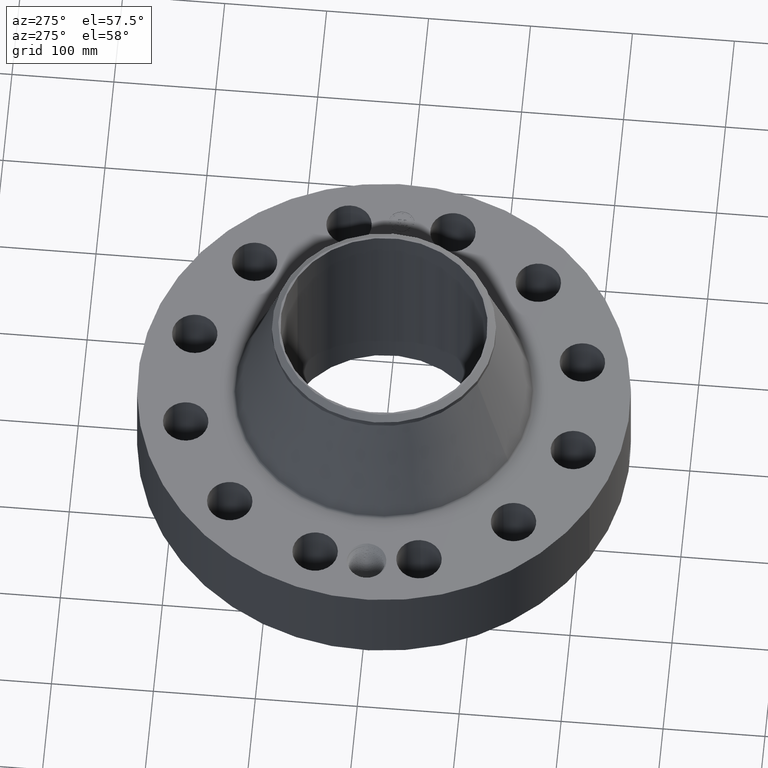
[diagram: clean part render]
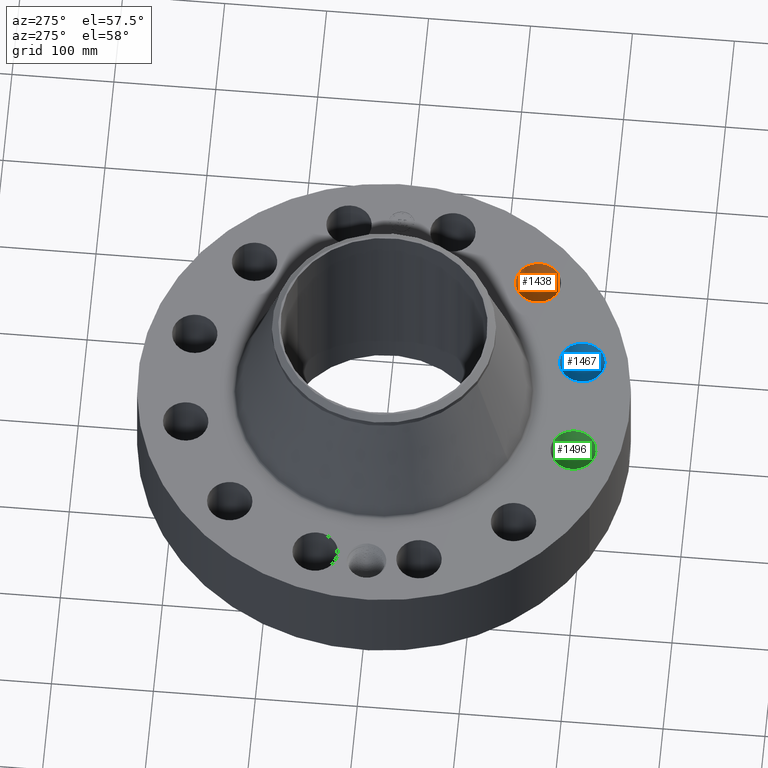
[diagram: same view with three faces highlighted in distinct colors, each labeled with its STEP entity id]
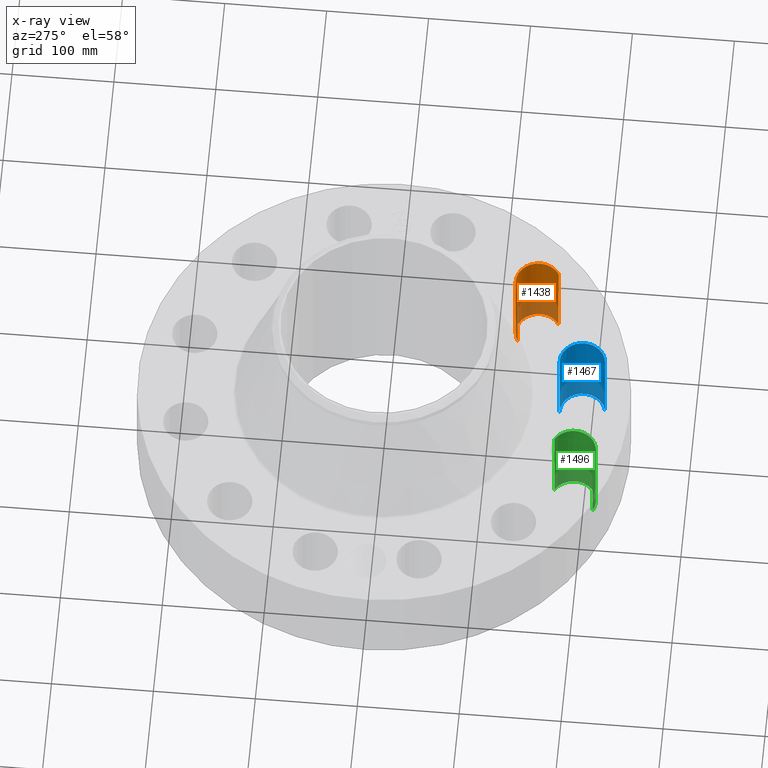
[diagram: x-ray of the same camera — body ghosted, the three highlighted faces saturated]
A machine part, auxiliary view with three faces highlighted in distinct colors.
The next image is the same camera in x-ray (body ghosted, the three faces saturated) — at least one of them is partly hidden behind the body in this view.
Their STEP definitions:

[orange] entity #1438 — the highlighted cylindrical surface (edge-blend (fillet) strip) has radius 22.225 mm, axis along (0, -0, -1).
#280=AXIS2_PLACEMENT_3D('Circle Axis2P3D',#278,#279,$) ;
#690=AXIS2_PLACEMENT_3D('Circle Axis2P3D',#688,#689,$) ;
#1420=AXIS2_PLACEMENT_3D('Cylinder Axis2P3D',#1417,#1418,#1419) ;
#278=CARTESIAN_POINT('Axis2P3D Location',(5.48007755422,-5.48007755422,0.250000000001)) ;
#282=CARTESIAN_POINT('Vertex',(5.0248185339,-4.73283982469,0.250000000001)) ;
#284=CARTESIAN_POINT('Vertex',(5.93533657453,-6.22731528375,0.250000000001)) ;
#683=CARTESIAN_POINT('Vertex',(5.93533657453,-6.22731528375,3.87000000002)) ;
#685=CARTESIAN_POINT('Vertex',(5.0248185339,-4.73283982469,3.87000000002)) ;
#688=CARTESIAN_POINT('Axis2P3D Location',(5.48007755422,-5.48007755422,3.87000000002)) ;
#1417=CARTESIAN_POINT('Axis2P3D Location',(5.48007755422,-5.48007755422,3.86606299214)) ;
#1422=CARTESIAN_POINT('Line Origine',(5.0248185339,-4.73283982469,2.06000000001)) ;
#1427=CARTESIAN_POINT('Line Origine',(5.93533657453,-6.22731528375,2.06000000001)) ;
#279=DIRECTION('Axis2P3D Direction',(0.,0.,-0.0393700787402)) ;
#689=DIRECTION('Axis2P3D Direction',(0.,0.,-0.0393700787402)) ;
#1418=DIRECTION('Axis2P3D Direction',(0.,-0.,-0.0393700787402)) ;
#1419=DIRECTION('Axis2P3D XDirection',(0.0204840954021,-0.0336214951417,0.)) ;
#1423=DIRECTION('Vector Direction',(0.,0.,-0.0393700787402)) ;
#1428=DIRECTION('Vector Direction',(0.,0.,-0.0393700787402)) ;
#1424=VECTOR('Line Direction',#1423,0.0393700787402) ;
#1429=VECTOR('Line Direction',#1428,0.0393700787402) ;
#1433=ORIENTED_EDGE('',*,*,#1426,.F.) ;
#1434=ORIENTED_EDGE('',*,*,#286,.T.) ;
#1435=ORIENTED_EDGE('',*,*,#1431,.T.) ;
#1436=ORIENTED_EDGE('',*,*,#692,.F.) ;
#1438=ADVANCED_FACE('PartBody',(#1437),#1421,.F.) ;
#281=CIRCLE('generated circle',#280,0.875000000003) ;
#691=CIRCLE('generated circle',#690,0.875000000003) ;
#1421=CYLINDRICAL_SURFACE('generated cylinder',#1420,0.875000000003) ;
#286=EDGE_CURVE('',#283,#285,#281,.T.) ;
#692=EDGE_CURVE('',#686,#684,#691,.T.) ;
#1426=EDGE_CURVE('',#283,#686,#1425,.F.) ;
#1431=EDGE_CURVE('',#285,#684,#1430,.F.) ;
#1432=EDGE_LOOP('',(#1433,#1434,#1435,#1436)) ;
#1437=FACE_OUTER_BOUND('',#1432,.T.) ;
#1425=LINE('Line',#1422,#1424) ;
#1430=LINE('Line',#1427,#1429) ;
#283=VERTEX_POINT('',#282) ;
#285=VERTEX_POINT('',#284) ;
#684=VERTEX_POINT('',#683) ;
#686=VERTEX_POINT('',#685) ;

[blue] entity #1467 — the highlighted cylindrical surface (edge-blend (fillet) strip) has radius 22.225 mm, axis along (0, -0, -1).
#298=AXIS2_PLACEMENT_3D('Circle Axis2P3D',#296,#297,$) ;
#708=AXIS2_PLACEMENT_3D('Circle Axis2P3D',#706,#707,$) ;
#1449=AXIS2_PLACEMENT_3D('Cylinder Axis2P3D',#1446,#1447,#1448) ;
#296=CARTESIAN_POINT('Axis2P3D Location',(2.00584759955,-7.48592515377,0.250000000001)) ;
#300=CARTESIAN_POINT('Vertex',(1.98520058742,-6.61116878718,0.250000000001)) ;
#302=CARTESIAN_POINT('Vertex',(2.02649461168,-8.36068152036,0.250000000001)) ;
#701=CARTESIAN_POINT('Vertex',(2.02649461168,-8.36068152036,3.87000000002)) ;
#703=CARTESIAN_POINT('Vertex',(1.98520058742,-6.61116878718,3.87000000002)) ;
#706=CARTESIAN_POINT('Axis2P3D Location',(2.00584759955,-7.48592515377,3.87000000002)) ;
#1446=CARTESIAN_POINT('Axis2P3D Location',(2.00584759955,-7.48592515377,3.86606299214)) ;
#1451=CARTESIAN_POINT('Line Origine',(1.98520058742,-6.61116878718,2.06000000001)) ;
#1456=CARTESIAN_POINT('Line Origine',(2.02649461168,-8.36068152036,2.06000000001)) ;
#297=DIRECTION('Axis2P3D Direction',(0.,0.,-0.0393700787402)) ;
#707=DIRECTION('Axis2P3D Direction',(0.,0.,-0.0393700787402)) ;
#1447=DIRECTION('Axis2P3D Direction',(0.,-0.,-0.0393700787402)) ;
#1448=DIRECTION('Axis2P3D XDirection',(0.000928999420902,-0.039359116607,0.)) ;
#1452=DIRECTION('Vector Direction',(0.,0.,-0.0393700787402)) ;
#1457=DIRECTION('Vector Direction',(0.,0.,-0.0393700787402)) ;
#1453=VECTOR('Line Direction',#1452,0.0393700787402) ;
#1458=VECTOR('Line Direction',#1457,0.0393700787402) ;
#1462=ORIENTED_EDGE('',*,*,#1455,.F.) ;
#1463=ORIENTED_EDGE('',*,*,#304,.T.) ;
#1464=ORIENTED_EDGE('',*,*,#1460,.T.) ;
#1465=ORIENTED_EDGE('',*,*,#710,.F.) ;
#1467=ADVANCED_FACE('PartBody',(#1466),#1450,.F.) ;
#299=CIRCLE('generated circle',#298,0.875000000003) ;
#709=CIRCLE('generated circle',#708,0.875000000003) ;
#1450=CYLINDRICAL_SURFACE('generated cylinder',#1449,0.875000000003) ;
#304=EDGE_CURVE('',#301,#303,#299,.T.) ;
#710=EDGE_CURVE('',#704,#702,#709,.T.) ;
#1455=EDGE_CURVE('',#301,#704,#1454,.F.) ;
#1460=EDGE_CURVE('',#303,#702,#1459,.F.) ;
#1461=EDGE_LOOP('',(#1462,#1463,#1464,#1465)) ;
#1466=FACE_OUTER_BOUND('',#1461,.T.) ;
#1454=LINE('Line',#1451,#1453) ;
#1459=LINE('Line',#1456,#1458) ;
#301=VERTEX_POINT('',#300) ;
#303=VERTEX_POINT('',#302) ;
#702=VERTEX_POINT('',#701) ;
#704=VERTEX_POINT('',#703) ;

[green] entity #1496 — the highlighted cylindrical surface (edge-blend (fillet) strip) has radius 22.225 mm, axis along (0, -0, -1).
#316=AXIS2_PLACEMENT_3D('Circle Axis2P3D',#314,#315,$) ;
#726=AXIS2_PLACEMENT_3D('Circle Axis2P3D',#724,#725,$) ;
#1478=AXIS2_PLACEMENT_3D('Cylinder Axis2P3D',#1475,#1476,#1477) ;
#314=CARTESIAN_POINT('Axis2P3D Location',(-2.00584759955,-7.48592515377,0.250000000001)) ;
#318=CARTESIAN_POINT('Vertex',(-1.58635025327,-6.71804041211,0.250000000001)) ;
#320=CARTESIAN_POINT('Vertex',(-2.42534494583,-8.25380989543,0.250000000001)) ;
#719=CARTESIAN_POINT('Vertex',(-2.42534494583,-8.25380989543,3.87000000002)) ;
#721=CARTESIAN_POINT('Vertex',(-1.58635025327,-6.71804041211,3.87000000002)) ;
#724=CARTESIAN_POINT('Axis2P3D Location',(-2.00584759955,-7.48592515377,3.87000000002)) ;
#1475=CARTESIAN_POINT('Axis2P3D Location',(-2.00584759955,-7.48592515377,3.86606299214)) ;
#1480=CARTESIAN_POINT('Line Origine',(-1.58635025327,-6.71804041211,2.06000000001)) ;
#1485=CARTESIAN_POINT('Line Origine',(-2.42534494583,-8.25380989543,2.06000000001)) ;
#315=DIRECTION('Axis2P3D Direction',(0.,0.,-0.0393700787402)) ;
#725=DIRECTION('Axis2P3D Direction',(0.,0.,-0.0393700787402)) ;
#1476=DIRECTION('Axis2P3D Direction',(0.,-0.,-0.0393700787402)) ;
#1477=DIRECTION('Axis2P3D XDirection',(-0.0188750212049,-0.0345504945626,0.)) ;
#1481=DIRECTION('Vector Direction',(0.,0.,-0.0393700787402)) ;
#1486=DIRECTION('Vector Direction',(0.,0.,-0.0393700787402)) ;
#1482=VECTOR('Line Direction',#1481,0.0393700787402) ;
#1487=VECTOR('Line Direction',#1486,0.0393700787402) ;
#1491=ORIENTED_EDGE('',*,*,#1484,.F.) ;
#1492=ORIENTED_EDGE('',*,*,#322,.T.) ;
#1493=ORIENTED_EDGE('',*,*,#1489,.T.) ;
#1494=ORIENTED_EDGE('',*,*,#728,.F.) ;
#1496=ADVANCED_FACE('PartBody',(#1495),#1479,.F.) ;
#317=CIRCLE('generated circle',#316,0.875000000003) ;
#727=CIRCLE('generated circle',#726,0.875000000003) ;
#1479=CYLINDRICAL_SURFACE('generated cylinder',#1478,0.875000000003) ;
#322=EDGE_CURVE('',#319,#321,#317,.T.) ;
#728=EDGE_CURVE('',#722,#720,#727,.T.) ;
#1484=EDGE_CURVE('',#319,#722,#1483,.F.) ;
#1489=EDGE_CURVE('',#321,#720,#1488,.F.) ;
#1490=EDGE_LOOP('',(#1491,#1492,#1493,#1494)) ;
#1495=FACE_OUTER_BOUND('',#1490,.T.) ;
#1483=LINE('Line',#1480,#1482) ;
#1488=LINE('Line',#1485,#1487) ;
#319=VERTEX_POINT('',#318) ;
#321=VERTEX_POINT('',#320) ;
#720=VERTEX_POINT('',#719) ;
#722=VERTEX_POINT('',#721) ;